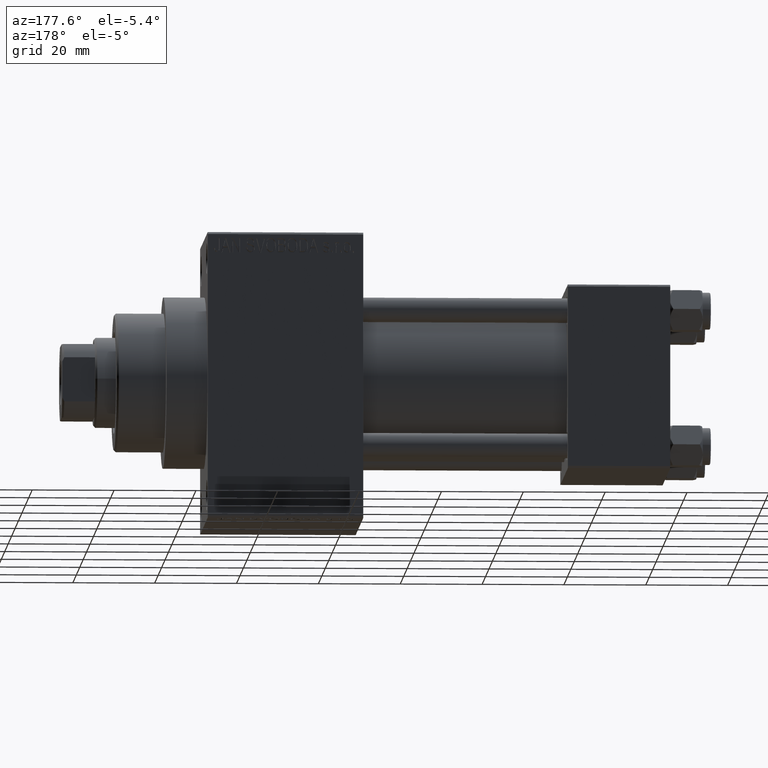
[diagram: clean part render]
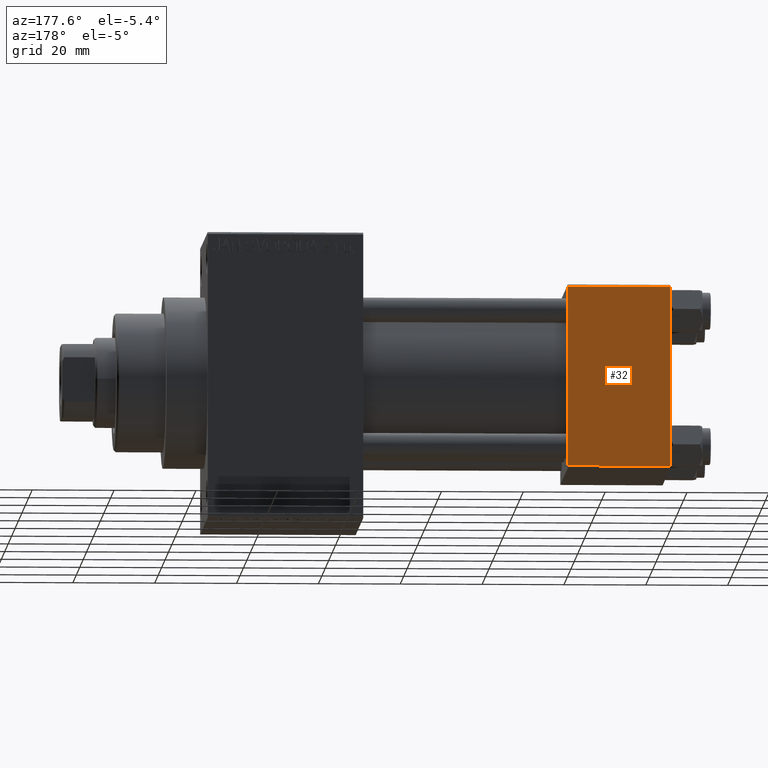
[diagram: same view with one face highlighted and labeled with its STEP entity id]
A machine part, auxiliary view. The second image highlights one B-rep face of the part: STEP entity #32.
In plain terms, the highlighted planar face has unit normal (0, 1, 0).
Its self-contained STEP definition (entity closure, byte-faithful):
#32 = ADVANCED_FACE ( 'NONE', ( #34459 ), #8478, .T. ) ;
#3252 = LINE ( 'NONE', #44026, #3445 ) ;
#3445 = VECTOR ( 'NONE', #15193, 1000.000000000000000 ) ;
#3615 = AXIS2_PLACEMENT_3D ( 'NONE', #30653, #38508, #23284 ) ;
#4817 = VECTOR ( 'NONE', #43079, 1000.000000000000000 ) ;
#5537 = VERTEX_POINT ( 'NONE', #38892 ) ;
#8478 = PLANE ( 'NONE',  #3615 ) ;
#8542 = ORIENTED_EDGE ( 'NONE', *, *, #9382, .T. ) ;
#9382 = EDGE_CURVE ( 'NONE', #35351, #5537, #30189, .T. ) ;
#10258 = ORIENTED_EDGE ( 'NONE', *, *, #23594, .T. ) ;
#15193 = DIRECTION ( 'NONE',  ( 1.000000000000000000, 0.000000000000000000, 0.000000000000000000 ) ) ;
#17352 = CARTESIAN_POINT ( 'NONE',  ( 25.00000000000000000, 22.50000000000000000, -21.99999999999998224 ) ) ;
#17814 = CARTESIAN_POINT ( 'NONE',  ( 0.000000000000000000, 22.50000000000000000, 22.50000000000000355 ) ) ;
#20007 = LINE ( 'NONE', #17352, #45900 ) ;
#20945 = DIRECTION ( 'NONE',  ( -1.000000000000000000, 0.000000000000000000, 0.000000000000000000 ) ) ;
#21981 = VECTOR ( 'NONE', #25047, 1000.000000000000000 ) ;
#23284 = DIRECTION ( 'NONE',  ( 0.000000000000000000, -0.000000000000000000, 1.000000000000000000 ) ) ;
#23594 = EDGE_CURVE ( 'NONE', #5537, #34661, #20007, .T. ) ;
#23730 = EDGE_CURVE ( 'NONE', #32652, #34661, #28559, .T. ) ;
#24532 = EDGE_LOOP ( 'NONE', ( #8542, #10258, #34337, #30750 ) ) ;
#25047 = DIRECTION ( 'NONE',  ( 0.000000000000000000, 0.000000000000000000, -1.000000000000000000 ) ) ;
#28559 = LINE ( 'NONE', #17814, #4817 ) ;
#30189 = LINE ( 'NONE', #36197, #21981 ) ;
#30653 = CARTESIAN_POINT ( 'NONE',  ( 25.00000000000000000, 22.50000000000000000, 22.50000000000000355 ) ) ;
#30750 = ORIENTED_EDGE ( 'NONE', *, *, #36468, .T. ) ;
#32652 = VERTEX_POINT ( 'NONE', #39183 ) ;
#34337 = ORIENTED_EDGE ( 'NONE', *, *, #23730, .F. ) ;
#34459 = FACE_OUTER_BOUND ( 'NONE', #24532, .T. ) ;
#34661 = VERTEX_POINT ( 'NONE', #46030 ) ;
#35351 = VERTEX_POINT ( 'NONE', #42934 ) ;
#36197 = CARTESIAN_POINT ( 'NONE',  ( 25.00000000000000000, 22.50000000000000000, 22.50000000000000355 ) ) ;
#36468 = EDGE_CURVE ( 'NONE', #32652, #35351, #3252, .T. ) ;
#38508 = DIRECTION ( 'NONE',  ( -0.000000000000000000, 1.000000000000000000, 0.000000000000000000 ) ) ;
#38892 = CARTESIAN_POINT ( 'NONE',  ( 25.00000000000000000, 22.50000000000000000, -21.99999999999996803 ) ) ;
#39183 = CARTESIAN_POINT ( 'NONE',  ( 0.000000000000000000, 22.50000000000000000, 21.99999999999999645 ) ) ;
#42934 = CARTESIAN_POINT ( 'NONE',  ( 25.00000000000000000, 22.50000000000000000, 21.99999999999999645 ) ) ;
#43079 = DIRECTION ( 'NONE',  ( 0.000000000000000000, 0.000000000000000000, -1.000000000000000000 ) ) ;
#44026 = CARTESIAN_POINT ( 'NONE',  ( 25.00000000000000000, 22.50000000000000000, 21.99999999999999645 ) ) ;
#45900 = VECTOR ( 'NONE', #20945, 1000.000000000000000 ) ;
#46030 = CARTESIAN_POINT ( 'NONE',  ( 0.000000000000000000, 22.50000000000000000, -21.99999999999996803 ) ) ;